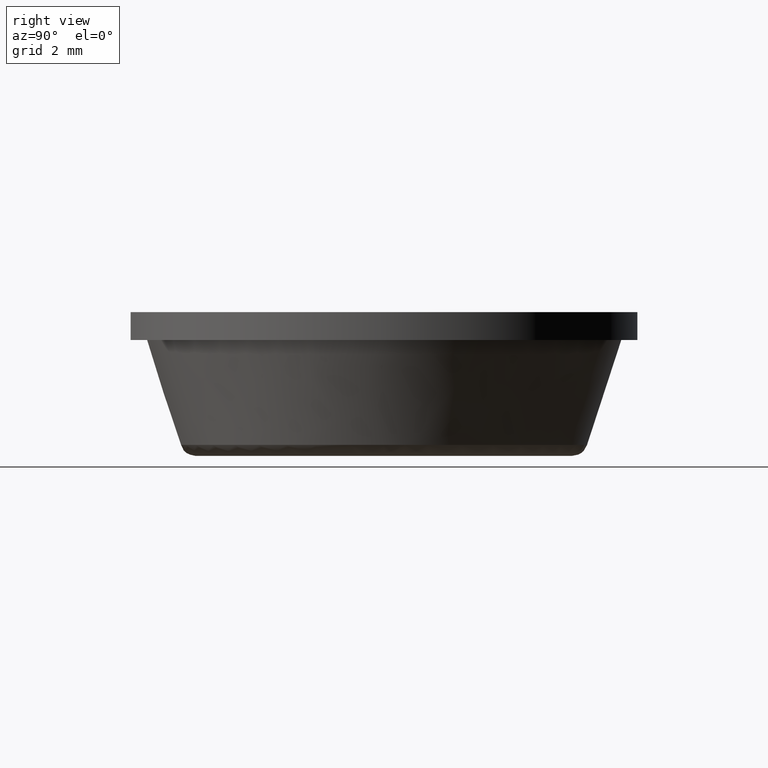
[diagram: clean part render]
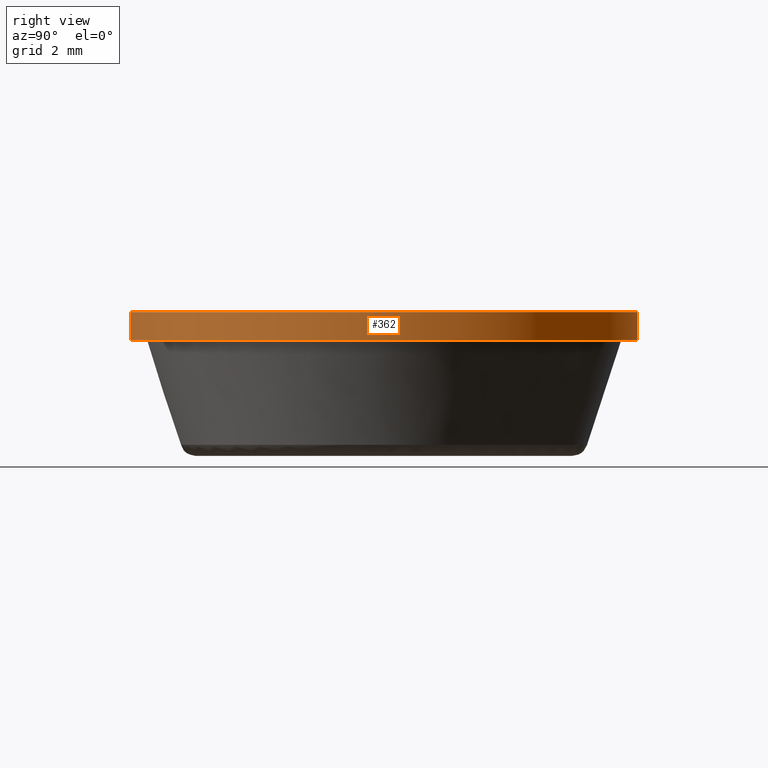
[diagram: same view with one face highlighted and labeled with its STEP entity id]
A machine part, right view. The second image highlights one B-rep face of the part: STEP entity #362.
In plain terms, the highlighted face is a freeform B-spline surface patch.
Its self-contained STEP definition (entity closure, byte-faithful):
#260=CARTESIAN_POINT('',(-0.749517390070416,6.305610492409281,3.617500000000001));
#261=CARTESIAN_POINT('',(-0.569053526851158,6.327061358098645,3.617500000000001));
#262=CARTESIAN_POINT('',(-0.387658226046342,6.338155969978853,3.617500000000001));
#263=CARTESIAN_POINT('',(5.950497743932512,6.725814196025195,3.617500000000000));
#264=CARTESIAN_POINT('',(6.338155969978853,0.387658226046342,3.617500000000001));
#265=CARTESIAN_POINT('',(6.725814196025195,-5.950497743932512,3.617500000000000));
#266=CARTESIAN_POINT('',(0.387658226046342,-6.338155969978853,3.617500000000001));
#267=CARTESIAN_POINT('',(-0.749517390070416,6.305610492409281,2.882062500000000));
#268=CARTESIAN_POINT('',(-0.569053526851158,6.327061358098645,2.882062500000000));
#269=CARTESIAN_POINT('',(-0.387658226046342,6.338155969978853,2.882062500000000));
#270=CARTESIAN_POINT('',(5.950497743932512,6.725814196025195,2.882062500000000));
#271=CARTESIAN_POINT('',(6.338155969978853,0.387658226046342,2.882062500000000));
#272=CARTESIAN_POINT('',(6.725814196025195,-5.950497743932512,2.882062500000000));
#273=CARTESIAN_POINT('',(0.387658226046342,-6.338155969978853,2.882062500000000));
#281=(BOUNDED_SURFACE()B_SPLINE_SURFACE(2,1,((#260,#267),(#261,#268),(#262,#269),(#263,#270),(#264,#271),(#265,#272),(#266,#273)),.UNSPECIFIED.,.F.,.F.,.U.)B_SPLINE_SURFACE_WITH_KNOTS((3,2,2,3),(2,2),(0.0,0.420840979371065,10.941865463647680,21.462889947924289),(0.0,1.0),.UNSPECIFIED.)GEOMETRIC_REPRESENTATION_ITEM()RATIONAL_B_SPLINE_SURFACE(((0.977505800795127,0.977505800795127),(0.988284271247462,0.988284271247462),(1.0,1.0),(0.707106781186548,0.707106781186548),(1.0,1.0),(0.707106781186548,0.707106781186548),(1.0,1.0)))REPRESENTATION_ITEM('')SURFACE());
#282=CARTESIAN_POINT('',(-0.749513374682920,6.305610969696359,2.900000000000056));
#283=VERTEX_POINT('',#282);
#284=CARTESIAN_POINT('',(6.350000000000000,0.0,2.900000000000000));
#285=VERTEX_POINT('',#284);
#286=CARTESIAN_POINT('',(-0.749513374682920,6.305610969696359,2.900000000000056));
#287=CARTESIAN_POINT('',(-0.376071130870991,6.350000000000000,2.900000000000000));
#288=CARTESIAN_POINT('',(0.0,6.350000000000000,2.900000000000000));
#289=CARTESIAN_POINT('',(6.350000000000000,6.350000000000000,2.900000000000001));
#290=CARTESIAN_POINT('',(6.350000000000000,0.0,2.900000000000000));
#298=(BOUNDED_CURVE()B_SPLINE_CURVE(2,(#286,#287,#288,#289,#290),.UNSPECIFIED.,.F.,.U.)B_SPLINE_CURVE_WITH_KNOTS((3,2,3),(0.229562581136241,0.250000000000000,0.500000000000000),.UNSPECIFIED.)CURVE()GEOMETRIC_REPRESENTATION_ITEM()RATIONAL_B_SPLINE_CURVE((0.956026965128767,0.976056074419019,1.0,0.707106781186547,1.0))REPRESENTATION_ITEM(''));
#299=EDGE_CURVE('',#283,#285,#298,.T.);
#300=ORIENTED_EDGE('',*,*,#299,.F.);
#301=CARTESIAN_POINT('',(-0.749513424211019,6.305610963809258,3.600000000000000));
#302=VERTEX_POINT('',#301);
#303=CARTESIAN_POINT('',(-0.749513424211019,6.305610963809258,3.600000000000000));
#304=CARTESIAN_POINT('',(-0.749513374682920,6.305610969696359,2.900000000000056));
#305=QUASI_UNIFORM_CURVE('',1,(#303,#304),.UNSPECIFIED.,.F.,.U.);
#306=EDGE_CURVE('',#302,#283,#305,.T.);
#307=ORIENTED_EDGE('',*,*,#306,.F.);
#308=CARTESIAN_POINT('',(6.350000000000000,0.0,3.600000000000000));
#309=VERTEX_POINT('',#308);
#310=CARTESIAN_POINT('',(-0.749513424211019,6.305610963809258,3.600000000000000));
#311=CARTESIAN_POINT('',(-0.376071155896838,6.350000000000000,3.600000000000000));
#312=CARTESIAN_POINT('',(0.0,6.350000000000000,3.600000000000000));
#313=CARTESIAN_POINT('',(6.350000000000000,6.350000000000000,3.600000000000000));
#314=CARTESIAN_POINT('',(6.350000000000000,0.0,3.600000000000000));
#322=(BOUNDED_CURVE()B_SPLINE_CURVE(2,(#310,#311,#312,#313,#314),.UNSPECIFIED.,.F.,.U.)B_SPLINE_CURVE_WITH_KNOTS((3,2,3),(0.229562579808786,0.250000000000000,0.500000000000000),.UNSPECIFIED.)CURVE()GEOMETRIC_REPRESENTATION_ITEM()RATIONAL_B_SPLINE_CURVE((0.956026962526900,0.976056072863809,1.0,0.707106781186547,1.0))REPRESENTATION_ITEM(''));
#323=EDGE_CURVE('',#302,#309,#322,.T.);
#324=ORIENTED_EDGE('',*,*,#323,.T.);
#325=CARTESIAN_POINT('',(0.387655985912206,-6.338156106990533,3.600000000000000));
#326=VERTEX_POINT('',#325);
#327=CARTESIAN_POINT('',(6.350000000000000,0.0,3.600000000000000));
#328=CARTESIAN_POINT('',(6.349999999999999,-5.973485640042394,3.600000000000001));
#329=CARTESIAN_POINT('',(0.387655985912206,-6.338156106990533,3.600000000000000));
#337=(BOUNDED_CURVE()B_SPLINE_CURVE(2,(#327,#328,#329),.UNSPECIFIED.,.F.,.U.)B_SPLINE_CURVE_WITH_KNOTS((3,3),(0.500000000000000,0.739333023226263),.UNSPECIFIED.)CURVE()GEOMETRIC_REPRESENTATION_ITEM()RATIONAL_B_SPLINE_CURVE((1.0,0.719603921835620,0.976072172374189))REPRESENTATION_ITEM(''));
#338=EDGE_CURVE('',#309,#326,#337,.T.);
#339=ORIENTED_EDGE('',*,*,#338,.T.);
#340=CARTESIAN_POINT('',(0.387655957948693,-6.338156108700835,2.900000000000037));
#341=VERTEX_POINT('',#340);
#342=CARTESIAN_POINT('',(0.387655985912206,-6.338156106990533,3.600000000000000));
#343=CARTESIAN_POINT('',(0.387655957948693,-6.338156108700835,2.900000000000037));
#344=QUASI_UNIFORM_CURVE('',1,(#342,#343),.UNSPECIFIED.,.F.,.U.);
#345=EDGE_CURVE('',#326,#341,#344,.T.);
#346=ORIENTED_EDGE('',*,*,#345,.T.);
#347=CARTESIAN_POINT('',(6.350000000000000,0.0,2.900000000000000));
#348=CARTESIAN_POINT('',(6.349999999999999,-5.973485666446256,2.900000000000000));
#349=CARTESIAN_POINT('',(0.387655957948693,-6.338156108700835,2.900000000000037));
#357=(BOUNDED_CURVE()B_SPLINE_CURVE(2,(#347,#348,#349),.UNSPECIFIED.,.F.,.U.)B_SPLINE_CURVE_WITH_KNOTS((3,3),(0.500000000000000,0.739333023987528),.UNSPECIFIED.)CURVE()GEOMETRIC_REPRESENTATION_ITEM()RATIONAL_B_SPLINE_CURVE((1.0,0.719603920943743,0.976072174005725))REPRESENTATION_ITEM(''));
#358=EDGE_CURVE('',#285,#341,#357,.T.);
#359=ORIENTED_EDGE('',*,*,#358,.F.);
#360=EDGE_LOOP('',(#300,#307,#324,#339,#346,#359));
#361=FACE_OUTER_BOUND('',#360,.T.);
#362=ADVANCED_FACE('',(#361),#281,.T.);